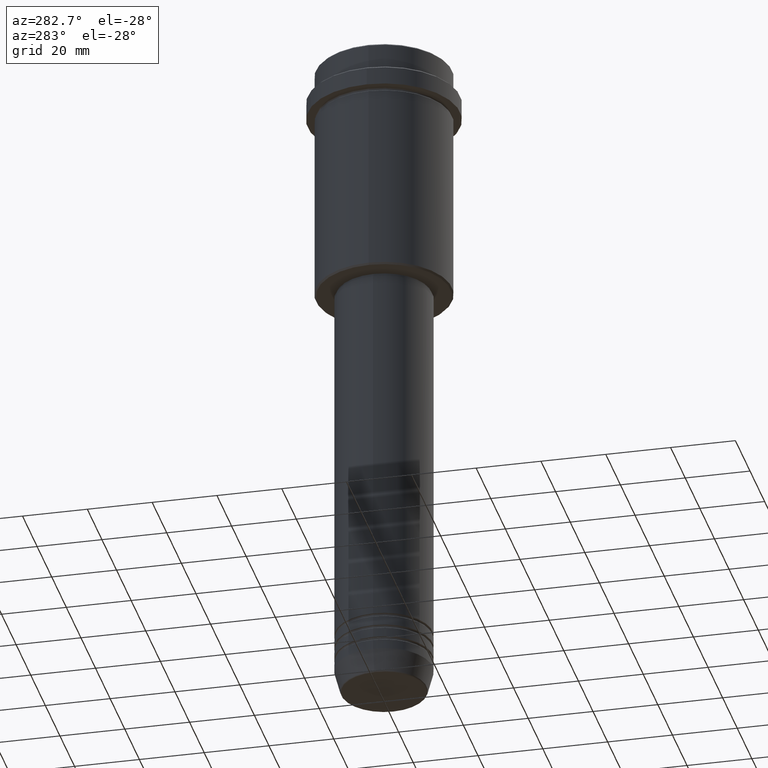
[diagram: clean part render]
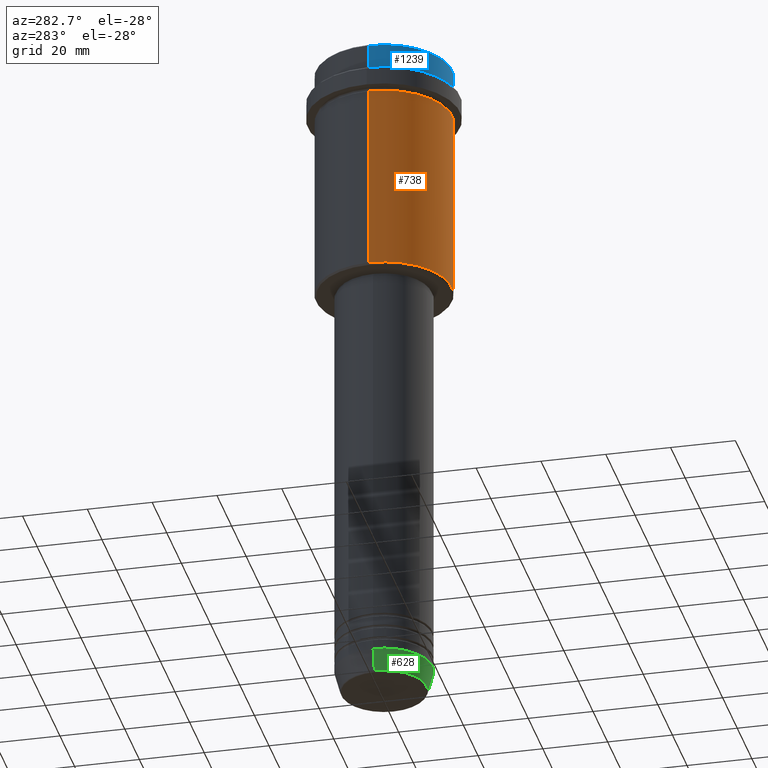
[diagram: same view with three faces highlighted in distinct colors, each labeled with its STEP entity id]
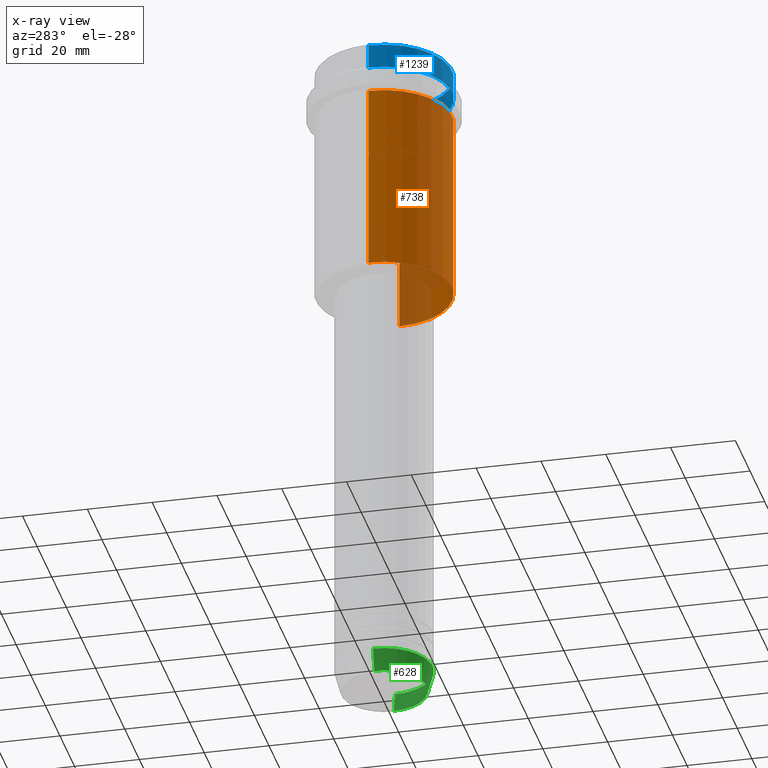
[diagram: x-ray of the same camera — body ghosted, the three highlighted faces saturated]
A machine part, auxiliary view with three faces highlighted in distinct colors.
The next image is the same camera in x-ray (body ghosted, the three faces saturated) — at least one of them is partly hidden behind the body in this view.
Their STEP definitions:

[orange] entity #738 — the highlighted cylindrical surface (partial cylindrical patch) has radius 21 mm, axis along (-0, -0, 1).
#10 = VECTOR ( 'NONE', #660, 1000.000000000000000 ) ;
#32 = VECTOR ( 'NONE', #506, 1000.000000000000000 ) ;
#129 = AXIS2_PLACEMENT_3D ( 'NONE', #251, #462, #1119 ) ;
#132 = CIRCLE ( 'NONE', #1408, 21.00000000000000000 ) ;
#138 = ORIENTED_EDGE ( 'NONE', *, *, #368, .T. ) ;
#141 = CARTESIAN_POINT ( 'NONE',  ( 0.000000000000000000, 0.000000000000000000, -74.50000000000001421 ) ) ;
#147 = ORIENTED_EDGE ( 'NONE', *, *, #493, .F. ) ;
#172 = EDGE_CURVE ( 'NONE', #716, #1289, #754, .T. ) ;
#216 = CARTESIAN_POINT ( 'NONE',  ( 21.00000000000000000, 0.000000000000000000, 0.000000000000000000 ) ) ;
#219 = CIRCLE ( 'NONE', #129, 21.00000000000000000 ) ;
#251 = CARTESIAN_POINT ( 'NONE',  ( 0.000000000000000000, 0.000000000000000000, -16.00000000000000355 ) ) ;
#368 = EDGE_CURVE ( 'NONE', #820, #834, #1300, .T. ) ;
#373 = CARTESIAN_POINT ( 'NONE',  ( -21.00000000000000000, 2.571758278209441661E-15, -16.00000000000000355 ) ) ;
#374 = CARTESIAN_POINT ( 'NONE',  ( 21.00000000000000000, 0.000000000000000000, -16.00000000000000355 ) ) ;
#444 = CYLINDRICAL_SURFACE ( 'NONE', #1095, 21.00000000000000000 ) ;
#458 = DIRECTION ( 'NONE',  ( 1.000000000000000000, 0.000000000000000000, 0.000000000000000000 ) ) ;
#462 = DIRECTION ( 'NONE',  ( -0.000000000000000000, -0.000000000000000000, 1.000000000000000000 ) ) ;
#493 = EDGE_CURVE ( 'NONE', #1289, #834, #219, .T. ) ;
#500 = EDGE_CURVE ( 'NONE', #716, #820, #132, .T. ) ;
#506 = DIRECTION ( 'NONE',  ( -0.000000000000000000, -0.000000000000000000, 1.000000000000000000 ) ) ;
#541 = ORIENTED_EDGE ( 'NONE', *, *, #172, .F. ) ;
#577 = DIRECTION ( 'NONE',  ( -1.000000000000000000, 0.000000000000000000, 0.000000000000000000 ) ) ;
#660 = DIRECTION ( 'NONE',  ( -0.000000000000000000, -0.000000000000000000, 1.000000000000000000 ) ) ;
#675 = CARTESIAN_POINT ( 'NONE',  ( 0.000000000000000000, 0.000000000000000000, 0.000000000000000000 ) ) ;
#716 = VERTEX_POINT ( 'NONE', #1105 ) ;
#738 = ADVANCED_FACE ( 'NONE', ( #804 ), #444, .T. ) ;
#754 = LINE ( 'NONE', #1186, #32 ) ;
#804 = FACE_OUTER_BOUND ( 'NONE', #1393, .T. ) ;
#820 = VERTEX_POINT ( 'NONE', #1350 ) ;
#834 = VERTEX_POINT ( 'NONE', #374 ) ;
#865 = ORIENTED_EDGE ( 'NONE', *, *, #500, .T. ) ;
#1095 = AXIS2_PLACEMENT_3D ( 'NONE', #675, #1233, #458 ) ;
#1105 = CARTESIAN_POINT ( 'NONE',  ( -21.00000000000000000, 2.571758278209441661E-15, -74.50000000000001421 ) ) ;
#1119 = DIRECTION ( 'NONE',  ( 1.000000000000000000, 0.000000000000000000, 0.000000000000000000 ) ) ;
#1186 = CARTESIAN_POINT ( 'NONE',  ( -21.00000000000000000, 2.571758278209441661E-15, 0.000000000000000000 ) ) ;
#1233 = DIRECTION ( 'NONE',  ( -0.000000000000000000, -0.000000000000000000, 1.000000000000000000 ) ) ;
#1241 = DIRECTION ( 'NONE',  ( -0.000000000000000000, -0.000000000000000000, 1.000000000000000000 ) ) ;
#1289 = VERTEX_POINT ( 'NONE', #373 ) ;
#1300 = LINE ( 'NONE', #216, #10 ) ;
#1350 = CARTESIAN_POINT ( 'NONE',  ( 21.00000000000000000, 0.000000000000000000, -74.50000000000001421 ) ) ;
#1393 = EDGE_LOOP ( 'NONE', ( #541, #865, #138, #147 ) ) ;
#1408 = AXIS2_PLACEMENT_3D ( 'NONE', #141, #1241, #577 ) ;

[blue] entity #1239 — the highlighted cylindrical surface (partial cylindrical patch) has radius 21 mm, axis along (-0, -0, 1).
#113 = DIRECTION ( 'NONE',  ( 1.000000000000000000, 0.000000000000000000, 0.000000000000000000 ) ) ;
#136 = CARTESIAN_POINT ( 'NONE',  ( 0.000000000000000000, 0.000000000000000000, -7.999999999999998224 ) ) ;
#154 = CARTESIAN_POINT ( 'NONE',  ( -21.00000000000000000, 2.571758278209441661E-15, 0.000000000000000000 ) ) ;
#156 = VERTEX_POINT ( 'NONE', #1292 ) ;
#213 = EDGE_CURVE ( 'NONE', #599, #410, #1162, .T. ) ;
#218 = CIRCLE ( 'NONE', #870, 21.00000000000000000 ) ;
#220 = DIRECTION ( 'NONE',  ( 1.000000000000000000, 0.000000000000000000, 0.000000000000000000 ) ) ;
#244 = AXIS2_PLACEMENT_3D ( 'NONE', #432, #527, #113 ) ;
#315 = CIRCLE ( 'NONE', #244, 21.00000000000000000 ) ;
#352 = ORIENTED_EDGE ( 'NONE', *, *, #353, .T. ) ;
#353 = EDGE_CURVE ( 'NONE', #156, #599, #218, .T. ) ;
#365 = DIRECTION ( 'NONE',  ( -0.000000000000000000, -0.000000000000000000, 1.000000000000000000 ) ) ;
#397 = ORIENTED_EDGE ( 'NONE', *, *, #528, .T. ) ;
#409 = EDGE_CURVE ( 'NONE', #156, #1236, #797, .T. ) ;
#410 = VERTEX_POINT ( 'NONE', #709 ) ;
#432 = CARTESIAN_POINT ( 'NONE',  ( 0.000000000000000000, 0.000000000000000000, -0.5000000000000108802 ) ) ;
#442 = CARTESIAN_POINT ( 'NONE',  ( 0.000000000000000000, 0.000000000000000000, 0.000000000000000000 ) ) ;
#466 = CYLINDRICAL_SURFACE ( 'NONE', #968, 21.00000000000000000 ) ;
#510 = VECTOR ( 'NONE', #522, 1000.000000000000000 ) ;
#522 = DIRECTION ( 'NONE',  ( -0.000000000000000000, -0.000000000000000000, 1.000000000000000000 ) ) ;
#527 = DIRECTION ( 'NONE',  ( 0.000000000000000000, 0.000000000000000000, -1.000000000000000000 ) ) ;
#528 = EDGE_CURVE ( 'NONE', #410, #1236, #315, .T. ) ;
#572 = DIRECTION ( 'NONE',  ( -0.000000000000000000, -0.000000000000000000, 1.000000000000000000 ) ) ;
#599 = VERTEX_POINT ( 'NONE', #1101 ) ;
#620 = ORIENTED_EDGE ( 'NONE', *, *, #409, .F. ) ;
#709 = CARTESIAN_POINT ( 'NONE',  ( 21.00000000000000000, 0.000000000000000000, -0.5000000000000108802 ) ) ;
#750 = VECTOR ( 'NONE', #365, 1000.000000000000000 ) ;
#797 = LINE ( 'NONE', #154, #750 ) ;
#870 = AXIS2_PLACEMENT_3D ( 'NONE', #136, #572, #1098 ) ;
#951 = ORIENTED_EDGE ( 'NONE', *, *, #213, .T. ) ;
#968 = AXIS2_PLACEMENT_3D ( 'NONE', #442, #1198, #220 ) ;
#1024 = FACE_OUTER_BOUND ( 'NONE', #1219, .T. ) ;
#1098 = DIRECTION ( 'NONE',  ( 1.000000000000000000, 0.000000000000000000, 0.000000000000000000 ) ) ;
#1101 = CARTESIAN_POINT ( 'NONE',  ( 21.00000000000000000, 0.000000000000000000, -7.999999999999998224 ) ) ;
#1121 = CARTESIAN_POINT ( 'NONE',  ( -21.00000000000000000, 2.571758278209441661E-15, -0.5000000000000108802 ) ) ;
#1162 = LINE ( 'NONE', #1283, #510 ) ;
#1198 = DIRECTION ( 'NONE',  ( -0.000000000000000000, -0.000000000000000000, 1.000000000000000000 ) ) ;
#1219 = EDGE_LOOP ( 'NONE', ( #620, #352, #951, #397 ) ) ;
#1236 = VERTEX_POINT ( 'NONE', #1121 ) ;
#1239 = ADVANCED_FACE ( 'NONE', ( #1024 ), #466, .T. ) ;
#1283 = CARTESIAN_POINT ( 'NONE',  ( 21.00000000000000000, 0.000000000000000000, 0.000000000000000000 ) ) ;
#1292 = CARTESIAN_POINT ( 'NONE',  ( -21.00000000000000000, 2.571758278209441661E-15, -7.999999999999998224 ) ) ;

[green] entity #628 — the highlighted conical surface has half-angle 15 deg.
#6 = EDGE_CURVE ( 'NONE', #1381, #1201, #54, .T. ) ;
#29 = CARTESIAN_POINT ( 'NONE',  ( -15.00000000000000000, 1.836970198721029589E-15, -203.0000000000000000 ) ) ;
#31 = CARTESIAN_POINT ( 'NONE',  ( 15.00000000000000000, 0.000000000000000000, -203.0000000000000000 ) ) ;
#54 = LINE ( 'NONE', #940, #1174 ) ;
#92 = CARTESIAN_POINT ( 'NONE',  ( 0.000000000000000000, 0.000000000000000000, -203.0000000000000000 ) ) ;
#98 = DIRECTION ( 'NONE',  ( 1.000000000000000000, 0.000000000000000000, 0.000000000000000000 ) ) ;
#171 = LINE ( 'NONE', #274, #1278 ) ;
#209 = DIRECTION ( 'NONE',  ( -0.000000000000000000, -0.000000000000000000, 1.000000000000000000 ) ) ;
#234 = ORIENTED_EDGE ( 'NONE', *, *, #858, .T. ) ;
#268 = AXIS2_PLACEMENT_3D ( 'NONE', #1404, #723, #98 ) ;
#274 = CARTESIAN_POINT ( 'NONE',  ( 15.00000000000000000, 0.000000000000000000, -203.0000000000000000 ) ) ;
#309 = CARTESIAN_POINT ( 'NONE',  ( -13.22365507213719837, 1.728200442216588780E-15, -209.6294095225512706 ) ) ;
#311 = EDGE_CURVE ( 'NONE', #1201, #722, #402, .T. ) ;
#402 = CIRCLE ( 'NONE', #963, 15.00000000000000000 ) ;
#542 = EDGE_CURVE ( 'NONE', #1381, #619, #563, .T. ) ;
#563 = CIRCLE ( 'NONE', #268, 13.22365507213719660 ) ;
#619 = VERTEX_POINT ( 'NONE', #1265 ) ;
#628 = ADVANCED_FACE ( 'NONE', ( #1077 ), #988, .T. ) ;
#722 = VERTEX_POINT ( 'NONE', #31 ) ;
#723 = DIRECTION ( 'NONE',  ( -0.000000000000000000, -0.000000000000000000, 1.000000000000000000 ) ) ;
#773 = ORIENTED_EDGE ( 'NONE', *, *, #6, .F. ) ;
#783 = DIRECTION ( 'NONE',  ( 1.000000000000000000, 0.000000000000000000, 0.000000000000000000 ) ) ;
#791 = EDGE_LOOP ( 'NONE', ( #773, #1394, #234, #897 ) ) ;
#858 = EDGE_CURVE ( 'NONE', #619, #722, #171, .T. ) ;
#897 = ORIENTED_EDGE ( 'NONE', *, *, #311, .F. ) ;
#937 = DIRECTION ( 'NONE',  ( 0.2588190451025210725, 0.000000000000000000, 0.9659258262890680902 ) ) ;
#940 = CARTESIAN_POINT ( 'NONE',  ( -15.00000000000000000, 1.836970198721029589E-15, -203.0000000000000000 ) ) ;
#963 = AXIS2_PLACEMENT_3D ( 'NONE', #1190, #209, #783 ) ;
#976 = DIRECTION ( 'NONE',  ( -0.000000000000000000, -0.000000000000000000, 1.000000000000000000 ) ) ;
#988 = CONICAL_SURFACE ( 'NONE', #1134, 15.00000000000000000, 0.2617993877991497964 ) ;
#1077 = FACE_OUTER_BOUND ( 'NONE', #791, .T. ) ;
#1134 = AXIS2_PLACEMENT_3D ( 'NONE', #92, #976, #1224 ) ;
#1174 = VECTOR ( 'NONE', #1261, 1000.000000000000114 ) ;
#1190 = CARTESIAN_POINT ( 'NONE',  ( 0.000000000000000000, 0.000000000000000000, -203.0000000000000000 ) ) ;
#1201 = VERTEX_POINT ( 'NONE', #29 ) ;
#1224 = DIRECTION ( 'NONE',  ( 1.000000000000000000, 0.000000000000000000, 0.000000000000000000 ) ) ;
#1261 = DIRECTION ( 'NONE',  ( -0.2588190451025210725, 3.169619151431769255E-17, 0.9659258262890680902 ) ) ;
#1265 = CARTESIAN_POINT ( 'NONE',  ( 13.22365507213719660, 0.000000000000000000, -209.6294095225512706 ) ) ;
#1278 = VECTOR ( 'NONE', #937, 1000.000000000000114 ) ;
#1381 = VERTEX_POINT ( 'NONE', #309 ) ;
#1394 = ORIENTED_EDGE ( 'NONE', *, *, #542, .T. ) ;
#1404 = CARTESIAN_POINT ( 'NONE',  ( 0.000000000000000000, 0.000000000000000000, -209.6294095225512706 ) ) ;